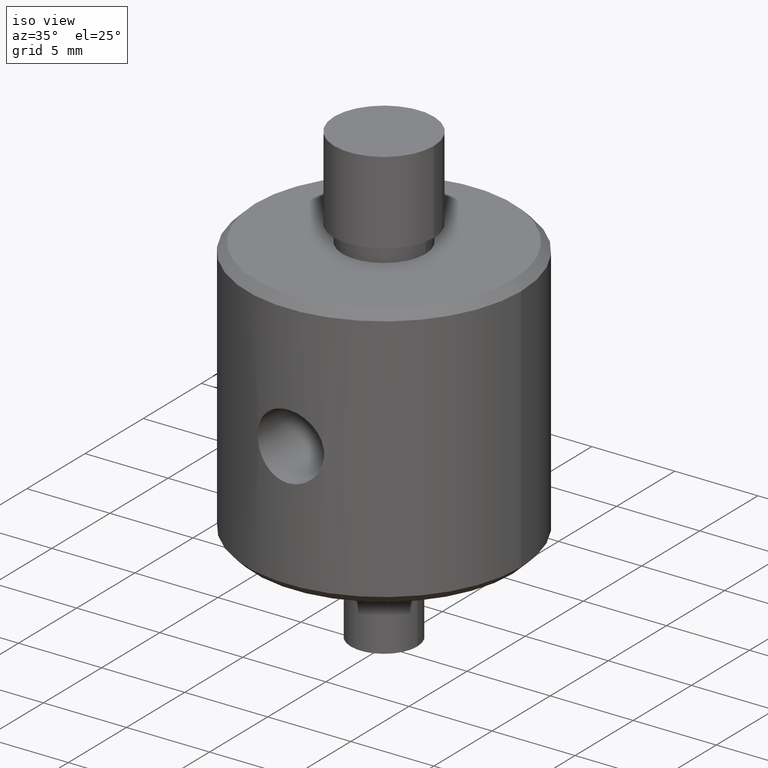
[diagram: clean part render]
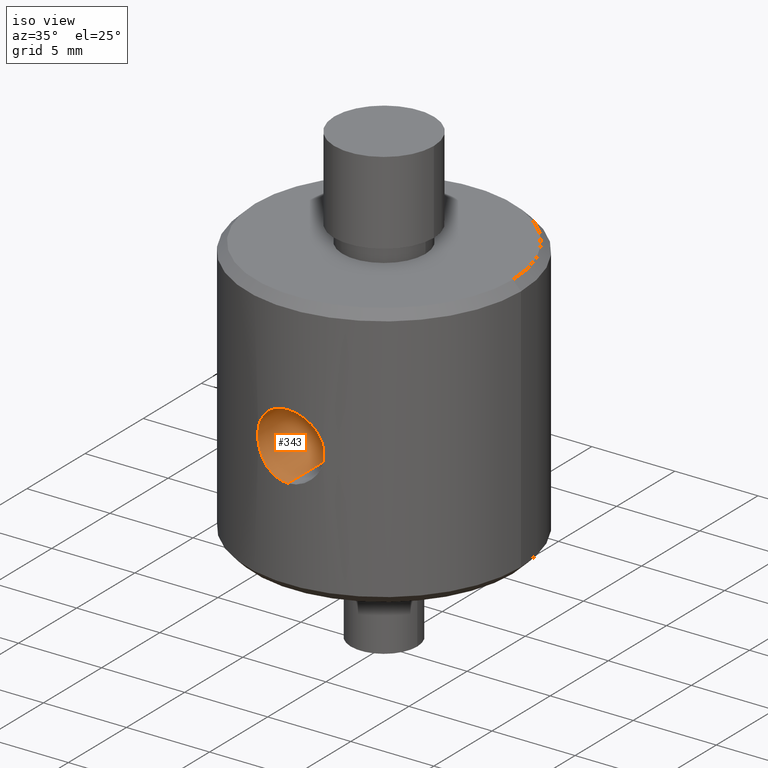
[diagram: same view with one face highlighted and labeled with its STEP entity id]
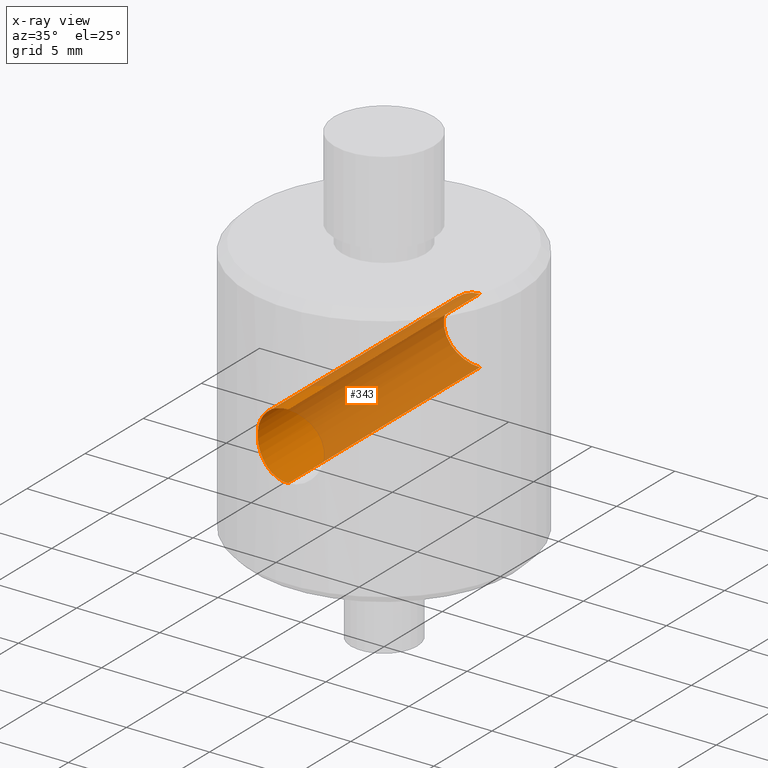
[diagram: x-ray of the same camera — body ghosted, the highlighted face saturated]
A machine part, iso view. The second image highlights one B-rep face of the part: STEP entity #343.
The next image is the same camera in x-ray: the body ghosted, the highlighted face saturated — about 75% of this face is hidden behind the body in this view.
In plain terms, the highlighted cylindrical surface (partial cylindrical patch) has radius 2 mm, axis along (-0, 1, -0).
Its self-contained STEP definition (entity closure, byte-faithful):
#2 = CARTESIAN_POINT ( 'NONE',  ( -0.1308165397492921700, -8.250000000000001800, -2.000000000000000900 ) ) ;
#4 = CARTESIAN_POINT ( 'NONE',  ( -1.935604370650708500, -8.019765173594350900, -0.5201874762982557900 ) ) ;
#7 = CARTESIAN_POINT ( 'NONE',  ( -1.220416603986454100, -8.159968065346266300, 1.589852038569584200 ) ) ;
#11 = CARTESIAN_POINT ( 'NONE',  ( -2.000045191572576500, 8.003894004411135300, 0.1312489192629629500 ) ) ;
#13 = CARTESIAN_POINT ( 'NONE',  ( -0.5211225312989512500, -8.234533888799106200, -1.935374489079428200 ) ) ;
#53 = CARTESIAN_POINT ( 'NONE',  ( -1.321223466088915300, -8.144060661153183400, -1.507167060968729300 ) ) ;
#57 = CARTESIAN_POINT ( 'NONE',  ( -1.505833281658624000, 8.111949852566528600, -1.322673550575946600 ) ) ;
#61 = CARTESIAN_POINT ( 'NONE',  ( -1.734485429178346700, 8.065947410585693000, -1.004220271036169600 ) ) ;
#63 = CARTESIAN_POINT ( 'NONE',  ( -1.897658194821841200, -8.028951604041024500, -0.6451074378026309100 ) ) ;
#66 = EDGE_LOOP ( 'NONE', ( #168, #300, #236, #247 ) ) ;
#68 = CARTESIAN_POINT ( 'NONE',  ( -0.2633971679137698800, 8.246803913401407700, 1.986932804278705100 ) ) ;
#73 = CARTESIAN_POINT ( 'NONE',  ( 0.0000000000000000000, -10.00000000000000000, 0.0000000000000000000 ) ) ;
#103 = DIRECTION ( 'NONE',  ( -0.0000000000000000000, 1.000000000000000000, -0.0000000000000000000 ) ) ;
#108 = CARTESIAN_POINT ( 'NONE',  ( -0.8869395704203337800, 8.203076758833363500, -1.797314436934732900 ) ) ;
#114 = CARTESIAN_POINT ( 'NONE',  ( -1.987161606794385400, 8.007145465530605600, 0.2613861231367247700 ) ) ;
#117 = CARTESIAN_POINT ( 'NONE',  ( -0.1326771134377834100, -8.250000000000000000, 2.000000000000000000 ) ) ;
#127 = CARTESIAN_POINT ( 'NONE',  ( -6.789005360349728400E-017, 8.250000000000000000, 2.000000000000000000 ) ) ;
#136 = CARTESIAN_POINT ( 'NONE',  ( -0.6485373955294846400, 8.225357481663911200, 1.896415006476869200 ) ) ;
#150 = AXIS2_PLACEMENT_3D ( 'NONE', #73, #377, #378 ) ;
#168 = ORIENTED_EDGE ( 'NONE', *, *, #257, .T. ) ;
#178 = CARTESIAN_POINT ( 'NONE',  ( -0.5193570997923324700, -8.234635984631101000, 1.935806336850731900 ) ) ;
#181 = CARTESIAN_POINT ( 'NONE',  ( -1.003367067051843800, -8.189490218781173800, 1.735021821357147600 ) ) ;
#182 = CARTESIAN_POINT ( 'NONE',  ( -1.897368781442408500, 8.029017936759030900, 0.6457941285481596500 ) ) ;
#185 = CARTESIAN_POINT ( 'NONE',  ( -0.2615629039225235700, 8.250000000000000000, -2.000000000000000400 ) ) ;
#187 = CARTESIAN_POINT ( 'NONE',  ( -1.599357376057809300, -8.095676499416024200, -1.229142779217262900 ) ) ;
#234 = CARTESIAN_POINT ( 'NONE',  ( -0.8886708092414188400, -8.202897855306337900, 1.796506368153792900 ) ) ;
#235 = FACE_OUTER_BOUND ( 'NONE', #66, .T. ) ;
#236 = ORIENTED_EDGE ( 'NONE', *, *, #271, .T. ) ;
#239 = CARTESIAN_POINT ( 'NONE',  ( -1.747129177818576000, -8.063531605375777300, 1.007640096485658400 ) ) ;
#241 = CARTESIAN_POINT ( 'NONE',  ( -1.231581452474026900, 8.159680445255538900, 1.597060228483784700 ) ) ;
#243 = CARTESIAN_POINT ( 'NONE',  ( 2.449308039802920400E-016, -8.250000000000000000, -2.000000000000000000 ) ) ;
#247 = ORIENTED_EDGE ( 'NONE', *, *, #416, .F. ) ;
#257 = EDGE_CURVE ( 'NONE', #426, #457, #621, .T. ) ;
#271 = EDGE_CURVE ( 'NONE', #278, #309, #316, .T. ) ;
#278 = VERTEX_POINT ( 'NONE', #606 ) ;
#279 = CARTESIAN_POINT ( 'NONE',  ( 2.449308039802920400E-016, -8.250000000000000000, -2.000000000000000000 ) ) ;
#300 = ORIENTED_EDGE ( 'NONE', *, *, #708, .T. ) ;
#303 = CARTESIAN_POINT ( 'NONE',  ( -0.6466695324974537400, -8.225514424492038400, 1.897100275092082700 ) ) ;
#309 = VERTEX_POINT ( 'NONE', #375 ) ;
#311 = CARTESIAN_POINT ( 'NONE',  ( -1.947787641228585300, 8.017442781952535600, -0.5248544217563377900 ) ) ;
#313 = CARTESIAN_POINT ( 'NONE',  ( -1.598332908652791100, -8.095838505945714300, 1.229985968183118200 ) ) ;
#316 = B_SPLINE_CURVE_WITH_KNOTS ( 'NONE', 3,
 ( #713, #185, #362, #108, #656, #415, #658, #57, #418, #61, #480, #311, #365, #11, #114, #542, #182, #420, #599, #241, #423, #136, #552, #68, #732, #127 ),
 .UNSPECIFIED., .F., .F.,
 ( 4, 2, 2, 2, 2, 2, 2, 2, 2, 2, 2, 2, 4 ),
 ( 0.006276366173216329500, 0.007060701512947540300, 0.007452869182813145700, 0.007845036852678751900, 0.008237204522544356400, 0.008629372192409962700, 0.009413707532141171700, 0.009805875202006778000, 0.01019804287187238200, 0.01098237821160359300, 0.01176671355133480600, 0.01215888122120041000, 0.01255104889106601500 ),
 .UNSPECIFIED. ) ;
#343 = ADVANCED_FACE ( 'NONE', ( #235 ), #612, .F. ) ;
#357 = CARTESIAN_POINT ( 'NONE',  ( -1.004520203861529100, -8.189343423344858800, -1.734320818487681500 ) ) ;
#362 = CARTESIAN_POINT ( 'NONE',  ( -0.5256441293576987700, 8.236790558271446000, -1.947229364106093600 ) ) ;
#365 = CARTESIAN_POINT ( 'NONE',  ( -1.999909263040937000, 8.003927969961225100, -0.2645583643814337600 ) ) ;
#368 = CARTESIAN_POINT ( 'NONE',  ( -1.220760633113353400, -8.159911152830549200, -1.589551200196607200 ) ) ;
#375 = CARTESIAN_POINT ( 'NONE',  ( -6.789005360349728400E-017, 8.250000000000000000, 2.000000000000000000 ) ) ;
#377 = DIRECTION ( 'NONE',  ( -0.0000000000000000000, 1.000000000000000000, -0.0000000000000000000 ) ) ;
#378 = DIRECTION ( 'NONE',  ( 0.0000000000000000000, 0.0000000000000000000, 1.000000000000000000 ) ) ;
#415 = CARTESIAN_POINT ( 'NONE',  ( -1.221030223150371400, 8.159876887627760300, -1.589387696022922700 ) ) ;
#416 = EDGE_CURVE ( 'NONE', #426, #309, #717, .T. ) ;
#418 = CARTESIAN_POINT ( 'NONE',  ( -1.589900384508794200, 8.095687994340249100, -1.220292925543182900 ) ) ;
#420 = CARTESIAN_POINT ( 'NONE',  ( -1.747216188800824900, 8.063515664767722400, 1.007704811256960700 ) ) ;
#423 = CARTESIAN_POINT ( 'NONE',  ( -1.009530896751481100, 8.191567199673246000, 1.746084158701253200 ) ) ;
#426 = VERTEX_POINT ( 'NONE', #682 ) ;
#445 = DIRECTION ( 'NONE',  ( -0.0000000000000000000, 1.000000000000000000, -0.0000000000000000000 ) ) ;
#450 = CARTESIAN_POINT ( 'NONE',  ( 0.0000000000000000000, -10.00000000000000000, 2.000000000000000000 ) ) ;
#457 = VERTEX_POINT ( 'NONE', #279 ) ;
#469 = CARTESIAN_POINT ( 'NONE',  ( 2.449293598294706400E-016, -10.00000000000000000, -2.000000000000000000 ) ) ;
#476 = CARTESIAN_POINT ( 'NONE',  ( -0.2635999258944435300, -8.246795264675656200, -1.986896621537046000 ) ) ;
#480 = CARTESIAN_POINT ( 'NONE',  ( -1.796101587691693500, 8.052279829401907600, -0.8895820937560504600 ) ) ;
#485 = CARTESIAN_POINT ( 'NONE',  ( -1.987145896334996400, -8.007150238837752500, 0.2619363400058078400 ) ) ;
#489 = CARTESIAN_POINT ( 'NONE',  ( -2.000054127914221900, -8.003891771416318700, -0.1301680920073833000 ) ) ;
#493 = VECTOR ( 'NONE', #103, 1000.000000000000000 ) ;
#537 = CARTESIAN_POINT ( 'NONE',  ( -1.322777905114126900, -8.143798310005646400, 1.505703159970232600 ) ) ;
#542 = CARTESIAN_POINT ( 'NONE',  ( -1.936141588103510000, 8.019634998458533600, 0.5181599248321968600 ) ) ;
#543 = CARTESIAN_POINT ( 'NONE',  ( -0.2630402404011860700, -8.246803709826968600, 1.986929239511523200 ) ) ;
#546 = CARTESIAN_POINT ( 'NONE',  ( -1.986918607695745900, -8.007206264713762100, -0.2632750207901880000 ) ) ;
#549 = VECTOR ( 'NONE', #445, 1000.000000000000000 ) ;
#552 = CARTESIAN_POINT ( 'NONE',  ( -0.5211970916093433500, 8.234531343425429000, 1.935363952460052600 ) ) ;
#590 = CARTESIAN_POINT ( 'NONE',  ( 6.789005360349728400E-017, -8.250000000000000000, 2.000000000000000000 ) ) ;
#595 = CARTESIAN_POINT ( 'NONE',  ( -0.6458375426091315100, -8.225576098385614500, -1.897362984632226000 ) ) ;
#596 = CARTESIAN_POINT ( 'NONE',  ( -0.8873435543799543800, -8.203037833527066200, -1.797140462901066500 ) ) ;
#599 = CARTESIAN_POINT ( 'NONE',  ( -1.598501874800889500, 8.095799503385800100, 1.229709723365947300 ) ) ;
#603 = CARTESIAN_POINT ( 'NONE',  ( -1.746564404702779300, -8.063665092118787600, -1.009254032915539300 ) ) ;
#606 = CARTESIAN_POINT ( 'NONE',  ( 2.449279156765281000E-016, 8.250000000000000000, -2.000000000000000000 ) ) ;
#612 = CYLINDRICAL_SURFACE ( 'NONE', #150, 2.000000000000000000 ) ;
#621 = B_SPLINE_CURVE_WITH_KNOTS ( 'NONE', 3,
 ( #590, #117, #543, #178, #303, #234, #181, #7, #537, #313, #239, #710, #715, #485, #666, #489, #546, #4, #63, #603, #187, #53, #368, #357, #596, #595, #13, #476, #2, #243 ),
 .UNSPECIFIED., .F., .F.,
 ( 4, 2, 2, 2, 2, 2, 2, 2, 2, 2, 2, 2, 2, 2, 4 ),
 ( 6.593988636400875700E-020, 0.0003922728858260206500, 0.0007845457716520413000, 0.001176818657478061800, 0.001569091543304082400, 0.002353637314956123700, 0.002745910200782144200, 0.003138183086608164800, 0.003530455972434185300, 0.003922728858260206300, 0.004707274629912247400, 0.005099547515738267500, 0.005491820401564288500, 0.005884093287390308600, 0.006276366173216329500 ),
 .UNSPECIFIED. ) ;
#649 = LINE ( 'NONE', #469, #493 ) ;
#656 = CARTESIAN_POINT ( 'NONE',  ( -1.003891274059350200, 8.189426593904842700, -1.734724866940920800 ) ) ;
#658 = CARTESIAN_POINT ( 'NONE',  ( -1.321366810000156500, 8.144031804710421000, -1.506980075174842300 ) ) ;
#666 = CARTESIAN_POINT ( 'NONE',  ( -1.999945528447225200, -8.003918908033524500, 0.1318261355252158300 ) ) ;
#682 = CARTESIAN_POINT ( 'NONE',  ( 6.789005360349728400E-017, -8.250000000000000000, 2.000000000000000000 ) ) ;
#708 = EDGE_CURVE ( 'NONE', #457, #278, #649, .T. ) ;
#710 = CARTESIAN_POINT ( 'NONE',  ( -1.896948438408481600, -8.029116526787948500, 0.6469438569360429500 ) ) ;
#713 = CARTESIAN_POINT ( 'NONE',  ( 2.449279156765281000E-016, 8.250000000000000000, -2.000000000000000000 ) ) ;
#715 = CARTESIAN_POINT ( 'NONE',  ( -1.935610163547384600, -8.019764152106503700, 0.5203582941673174900 ) ) ;
#717 = LINE ( 'NONE', #450, #549 ) ;
#732 = CARTESIAN_POINT ( 'NONE',  ( -0.1326415266041785500, 8.250000000000000000, 1.999999999999999600 ) ) ;